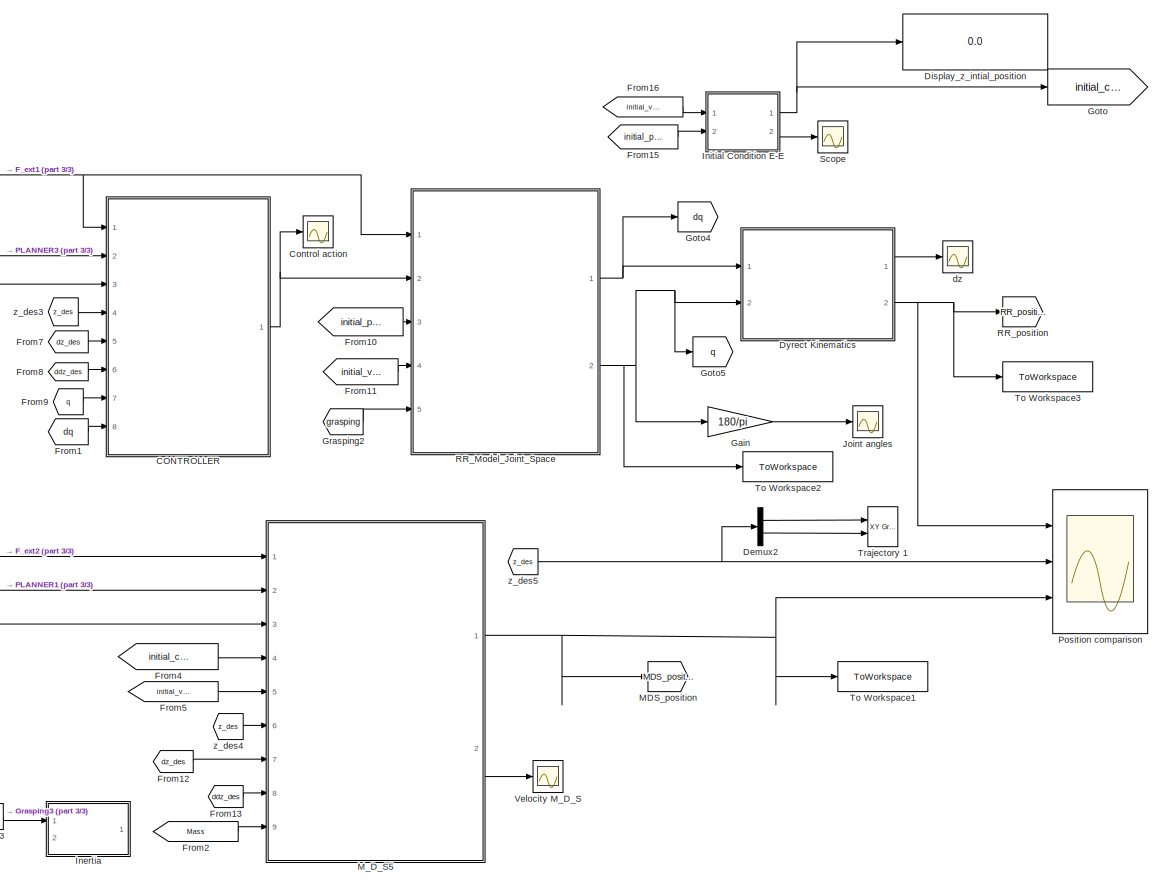
[diagram: root canvas - part 1/3, middle right region]
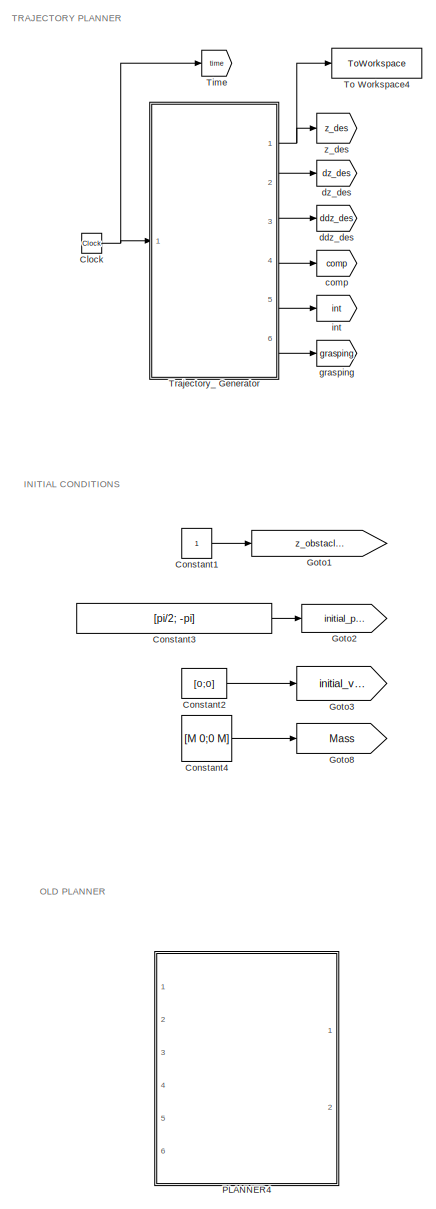
[diagram: root canvas - part 2/3, left side, full height]
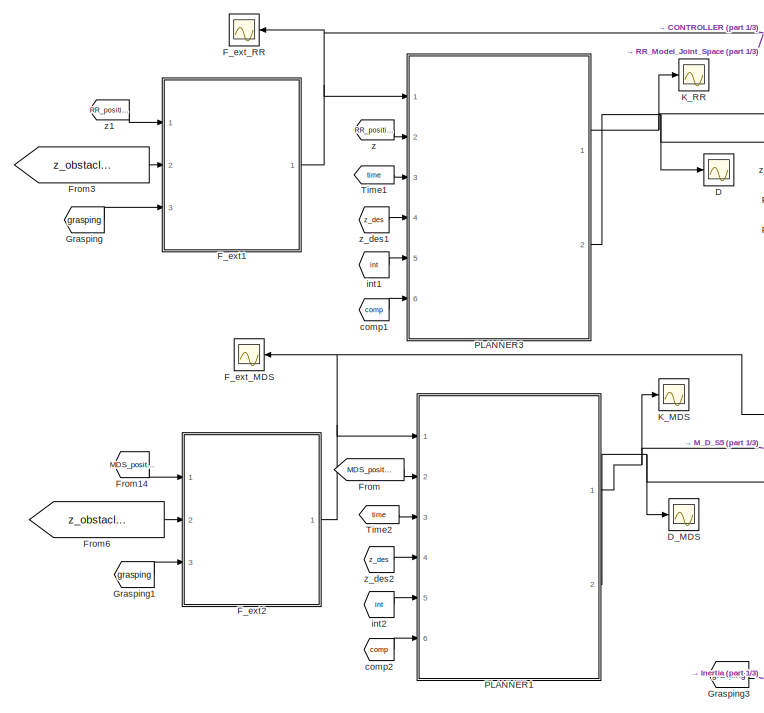
[diagram: root canvas - part 3/3, central region]
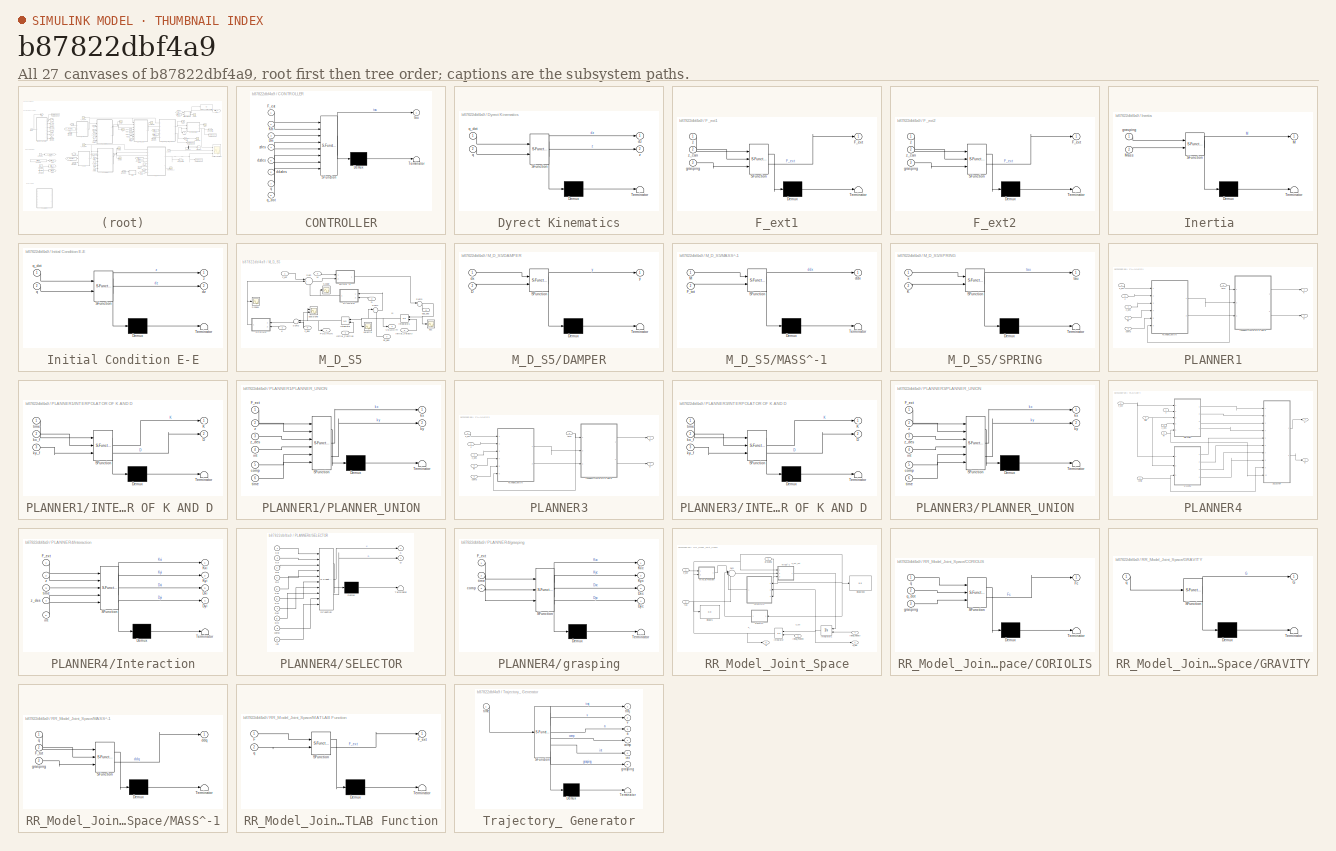
[diagram: thumbnail index - all 27 canvases of the model, root first then tree order]
MODEL slx_b87822dbf4a9
KIND model
CONFIG AbsTol = auto
CONFIG EnableMultiTasking = off
CONFIG FixedStep = 0.001
CONFIG MaxStep = auto
CONFIG MinStep = auto
CONFIG RelTol = 1e-3
CONFIG SampleTimeConstraint = Unconstrained
CONFIG SolverName = FixedStepAuto
CONFIG StartTime = 0.0
CONFIG StopTime = 5
BLOCK [SubSystem] CONTROLLER
  ErrorFcn = Stateflow.Translate.translate
  PermitHierarchicalResolution = ExplicitOnly
  Ports = [8, 1]
  RequestExecContextInheritance = off
  SFBlockType = MATLAB Function
  TreatAsAtomicUnit = on
BLOCK [Demux] CONTROLLER/ Demux 
  Outputs = 1
  Ports = [1, 1]
BLOCK [S-Function] CONTROLLER/ SFunction 
  EnableBusSupport = on
  FunctionName = sf_sfun
  Parameters = M
  PortCounts = [8 2]
  Ports = [8, 2]
  SFcnIsStateOwnerBlock = off
  SFunctionDeploymentMode = off
  Tag = Stateflow S-Function 13
BLOCK [Terminator] CONTROLLER/ Terminator 
BLOCK [Inport] CONTROLLER/Dm
  Port = 3
BLOCK [Inport] CONTROLLER/F_ext
BLOCK [Inport] CONTROLLER/Km
  Port = 2
BLOCK [Inport] CONTROLLER/ddzdes
  Port = 6
BLOCK [Inport] CONTROLLER/dzdes
  Port = 5
BLOCK [Inport] CONTROLLER/q
  Port = 7
BLOCK [Inport] CONTROLLER/q_dot
  Port = 8
BLOCK [Outport] CONTROLLER/tau
BLOCK [Inport] CONTROLLER/zdes
  Port = 4
BLOCK [Clock] Clock
BLOCK [Constant] Constant1
BLOCK [Constant] Constant2
  Value = [0;0]
BLOCK [Constant] Constant3
  Value = [pi/2; -pi]
BLOCK [Constant] Constant4
  Value = [M 0;0 M]
BLOCK [Scope] Control action
  Floating = off
  NumInputPorts = 1
  Ports = [1]
  ScopeSpecificationString = Simulink.scopes.TimeScopeBlockCfg('CurrentConfiguration', extmgr.ConfigurationSet(extmgr.Configuration('Core','General UI',true),extmgr.Configuration('Core','Source UI',true),extmgr.Configuration('Sources','WiredSimulink',true,'DataLoggingVariableName','ScopeData16'),extmgr.Configuration('Visuals','Time Domain',true,'SerializedDisplays',{struct('MinYLimReal','-353.38379','MaxYLimReal','314.35842',...<+1520ch>
BLOCK [Scope] D
  Floating = off
  NumInputPorts = 1
  Ports = [1]
  ScopeSpecificationString = Simulink.scopes.TimeScopeBlockCfg('CurrentConfiguration', extmgr.ConfigurationSet(extmgr.Configuration('Core','General UI',true),extmgr.Configuration('Core','Source UI',true),extmgr.Configuration('Sources','WiredSimulink',true,'DataLoggingVariableName','ScopeData12'),extmgr.Configuration('Visuals','Time Domain',true,'SerializedDisplays',{struct('MinYLimReal','-1.75089','MaxYLimReal','15.75803','YL...<+1451ch>
BLOCK [Scope] D_MDS
  Floating = off
  NumInputPorts = 1
  Ports = [1]
  ScopeSpecificationString = Simulink.scopes.TimeScopeBlockCfg('CurrentConfiguration', extmgr.ConfigurationSet(extmgr.Configuration('Core','General UI',true),extmgr.Configuration('Core','Source UI',true),extmgr.Configuration('Sources','WiredSimulink',true,'DataLoggingVariableName','ScopeData3'),extmgr.Configuration('Visuals','Time Domain',true,'SerializedDisplays',{struct('MinYLimReal','-7.83023','MaxYLimReal','70.47207','YLa...<+1469ch>
BLOCK [Demux] Demux2
  Commented = on
  Outputs = 2
  Ports = [1, 2]
BLOCK [Display] Display_z_intial_position
  Decimation = 1
  Ports = [1]
BLOCK [SubSystem] Dyrect Kinematics
  ErrorFcn = Stateflow.Translate.translate
  PermitHierarchicalResolution = ExplicitOnly
  Ports = [2, 2]
  RequestExecContextInheritance = off
  SFBlockType = MATLAB Function
  TreatAsAtomicUnit = on
BLOCK [Demux] Dyrect Kinematics/ Demux 
  Outputs = 1
  Ports = [1, 1]
BLOCK [S-Function] Dyrect Kinematics/ SFunction 
  EnableBusSupport = on
  FunctionName = sf_sfun
  Parameters = l1,l2
  PortCounts = [2 3]
  Ports = [2, 3]
  SFcnIsStateOwnerBlock = off
  SFunctionDeploymentMode = off
  Tag = Stateflow S-Function 6
BLOCK [Terminator] Dyrect Kinematics/ Terminator 
BLOCK [Outport] Dyrect Kinematics/dz
BLOCK [Inport] Dyrect Kinematics/q
  Port = 2
BLOCK [Inport] Dyrect Kinematics/q_dot
BLOCK [Outport] Dyrect Kinematics/z
  Port = 2
BLOCK [SubSystem] F_ext1
  ErrorFcn = Stateflow.Translate.translate
  PermitHierarchicalResolution = ExplicitOnly
  Ports = [3, 1]
  RequestExecContextInheritance = off
  SFBlockType = MATLAB Function
  TreatAsAtomicUnit = on
BLOCK [Demux] F_ext1/ Demux 
  Outputs = 1
  Ports = [1, 1]
BLOCK [S-Function] F_ext1/ SFunction 
  EnableBusSupport = on
  FunctionName = sf_sfun
  Parameters = g,mass_can
  PortCounts = [3 2]
  Ports = [3, 2]
  SFcnIsStateOwnerBlock = off
  SFunctionDeploymentMode = off
  Tag = Stateflow S-Function 11
BLOCK [Terminator] F_ext1/ Terminator 
BLOCK [Outport] F_ext1/F_ext
BLOCK [Inport] F_ext1/grasping
  Port = 3
BLOCK [Inport] F_ext1/z
BLOCK [Inport] F_ext1/z_can
  Port = 2
BLOCK [SubSystem] F_ext2
  ErrorFcn = Stateflow.Translate.translate
  PermitHierarchicalResolution = ExplicitOnly
  Ports = [3, 1]
  RequestExecContextInheritance = off
  SFBlockType = MATLAB Function
  TreatAsAtomicUnit = on
BLOCK [Demux] F_ext2/ Demux 
  Outputs = 1
  Ports = [1, 1]
BLOCK [S-Function] F_ext2/ SFunction 
  EnableBusSupport = on
  FunctionName = sf_sfun
  Parameters = g,mass_can
  PortCounts = [3 2]
  Ports = [3, 2]
  SFcnIsStateOwnerBlock = off
  SFunctionDeploymentMode = off
  Tag = Stateflow S-Function 1
BLOCK [Terminator] F_ext2/ Terminator 
BLOCK [Outport] F_ext2/F_ext
BLOCK [Inport] F_ext2/grasping
  Port = 3
BLOCK [Inport] F_ext2/z
BLOCK [Inport] F_ext2/z_can
  Port = 2
BLOCK [Scope] F_ext_MDS
  Floating = off
  NameLocation = top
  NumInputPorts = 1
  Ports = [1]
  ScopeSpecificationString = Simulink.scopes.TimeScopeBlockCfg('CurrentConfiguration', extmgr.ConfigurationSet(extmgr.Configuration('Core','General UI',true),extmgr.Configuration('Core','Source UI',true),extmgr.Configuration('Sources','WiredSimulink',true,'DataLoggingVariableName','ScopeData4'),extmgr.Configuration('Visuals','Time Domain',true,'SerializedDisplays',{struct('MinYLimReal','-11.03645','MaxYLimReal','1.22803','YLa...<+1533ch>
BLOCK [Scope] F_ext_RR
  Floating = off
  NumInputPorts = 1
  Ports = [1]
  ScopeSpecificationString = Simulink.scopes.TimeScopeBlockCfg('CurrentConfiguration', extmgr.ConfigurationSet(extmgr.Configuration('Core','General UI',true),extmgr.Configuration('Core','Source UI',true),extmgr.Configuration('Sources','WiredSimulink',true),extmgr.Configuration('Visuals','Time Domain',true,'SerializedDisplays',{struct('MinYLimReal','-10.50214','MaxYLimReal','1.1669','YLabelReal','','MinYLimMag','0.00000','MaxY...<+1493ch>
BLOCK [From] From
  GotoTag = MDS_position
BLOCK [From] From1
  GotoTag = dq
BLOCK [From] From10
  GotoTag = initial_pos
BLOCK [From] From11
  GotoTag = initial_vel
BLOCK [From] From12
  GotoTag = dz_des
  TagVisibility = global
BLOCK [From] From13
  GotoTag = ddz_des
BLOCK [From] From14
  GotoTag = MDS_position
BLOCK [From] From15
  GotoTag = initial_pos
BLOCK [From] From16
  GotoTag = initial_vel
BLOCK [From] From2
  GotoTag = Mass
BLOCK [From] From3
  GotoTag = z_obstacle_for_interaction
BLOCK [From] From4
  GotoTag = initial_condition
BLOCK [From] From5
  GotoTag = initial_vel
BLOCK [From] From6
  GotoTag = z_obstacle_for_interaction
BLOCK [From] From7
  GotoTag = dz_des
  TagVisibility = global
BLOCK [From] From8
  GotoTag = ddz_des
BLOCK [From] From9
  GotoTag = q
BLOCK [Gain] Gain
  Gain = 180/pi
BLOCK [Goto] Goto
  GotoTag = initial_condition
BLOCK [Goto] Goto1
  GotoTag = z_obstacle_for_interaction
BLOCK [Goto] Goto2
  GotoTag = initial_pos
BLOCK [Goto] Goto3
  GotoTag = initial_vel
BLOCK [Goto] Goto4
  GotoTag = dq
BLOCK [Goto] Goto5
  GotoTag = q
BLOCK [Goto] Goto8
  GotoTag = Mass
BLOCK [From] Grasping
  GotoTag = grasping
BLOCK [From] Grasping1
  GotoTag = grasping
BLOCK [From] Grasping2
  GotoTag = grasping
BLOCK [From] Grasping3
  Commented = on
  GotoTag = grasping
BLOCK [SubSystem] Inertia 
  Commented = on
  ErrorFcn = Stateflow.Translate.translate
  PermitHierarchicalResolution = ExplicitOnly
  Ports = [2, 1]
  RequestExecContextInheritance = off
  SFBlockType = MATLAB Function
  TreatAsAtomicUnit = on
BLOCK [Demux] Inertia / Demux 
  Outputs = 1
  Ports = [1, 1]
BLOCK [S-Function] Inertia / SFunction 
  EnableBusSupport = on
  FunctionName = sf_sfun
  Parameters = mass_can
  PortCounts = [2 2]
  Ports = [2, 2]
  SFcnIsStateOwnerBlock = off
  SFunctionDeploymentMode = off
  Tag = Stateflow S-Function 12
BLOCK [Terminator] Inertia / Terminator 
BLOCK [Outport] Inertia /M
BLOCK [Inport] Inertia /Mass
  Port = 2
BLOCK [Inport] Inertia /grasping
BLOCK [SubSystem] Initial Condition E-E
  ErrorFcn = Stateflow.Translate.translate
  PermitHierarchicalResolution = ExplicitOnly
  Ports = [2, 2]
  RequestExecContextInheritance = off
  SFBlockType = MATLAB Function
  TreatAsAtomicUnit = on
BLOCK [Demux] Initial Condition E-E/ Demux 
  Outputs = 1
  Ports = [1, 1]
BLOCK [S-Function] Initial Condition E-E/ SFunction 
  EnableBusSupport = on
  FunctionName = sf_sfun
  Parameters = l1,l2
  PortCounts = [2 3]
  Ports = [2, 3]
  SFcnIsStateOwnerBlock = off
  SFunctionDeploymentMode = off
  Tag = Stateflow S-Function 14
BLOCK [Terminator] Initial Condition E-E/ Terminator 
BLOCK [Outport] Initial Condition E-E/dz
  Port = 2
BLOCK [Inport] Initial Condition E-E/q
  Port = 2
BLOCK [Inport] Initial Condition E-E/q_dot
BLOCK [Outport] Initial Condition E-E/z
BLOCK [Scope] Joint angles
  Floating = off
  NumInputPorts = 1
  Ports = [1]
  ScopeSpecificationString = Simulink.scopes.TimeScopeBlockCfg('CurrentConfiguration', extmgr.ConfigurationSet(extmgr.Configuration('Core','General UI',true),extmgr.Configuration('Core','Source UI',true),extmgr.Configuration('Sources','WiredSimulink',true,'DataLoggingVariableName','ScopeData15'),extmgr.Configuration('Visuals','Time Domain',true,'SerializedDisplays',{struct('MinYLimReal','20.81645','MaxYLimReal','131.7396','YL...<+1452ch>
BLOCK [Scope] K_MDS
  Floating = off
  NumInputPorts = 1
  Ports = [1]
  ScopeSpecificationString = Simulink.scopes.TimeScopeBlockCfg('CurrentConfiguration', extmgr.ConfigurationSet(extmgr.Configuration('Core','General UI',true),extmgr.Configuration('Core','Source UI',true),extmgr.Configuration('Sources','WiredSimulink',true,'DataLoggingVariableName','ScopeData2'),extmgr.Configuration('Visuals','Time Domain',true,'SerializedDisplays',{struct('MinYLimReal','-61.3125','MaxYLimReal','551.8125','YLa...<+1570ch>
BLOCK [Scope] K_RR
  Floating = off
  NumInputPorts = 1
  Ports = [1]
  ScopeSpecificationString = Simulink.scopes.TimeScopeBlockCfg('CurrentConfiguration', extmgr.ConfigurationSet(extmgr.Configuration('Core','General UI',true),extmgr.Configuration('Core','Source UI',true),extmgr.Configuration('Sources','WiredSimulink',true,'DataLoggingVariableName','ScopeData13'),extmgr.Configuration('Visuals','Time Domain',true,'SerializedDisplays',{struct('MinYLimReal','-122.625','MaxYLimReal','1103.625','YL...<+1605ch>
BLOCK [Goto] MDS_position
  GotoTag = MDS_position
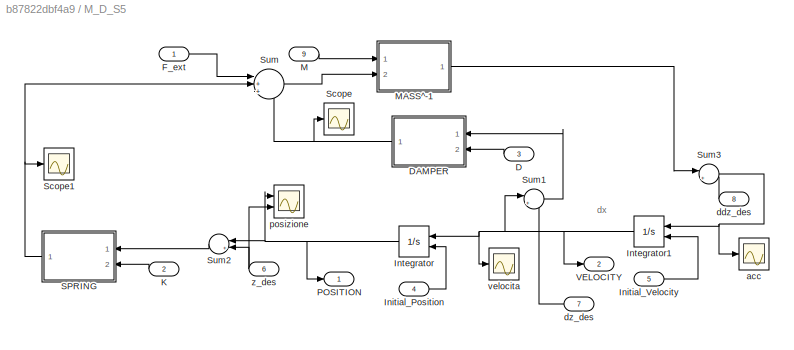
BLOCK [SubSystem] M_D_S5
  Ports = [9, 2]
  RequestExecContextInheritance = off
BLOCK [Inport] M_D_S5/D
  Port = 3
BLOCK [SubSystem] M_D_S5/DAMPER
  ErrorFcn = Stateflow.Translate.translate
  PermitHierarchicalResolution = ExplicitOnly
  Ports = [2, 1]
  RequestExecContextInheritance = off
  SFBlockType = MATLAB Function
  TreatAsAtomicUnit = on
BLOCK [Demux] M_D_S5/DAMPER/ Demux 
  Outputs = 1
  Ports = [1, 1]
BLOCK [S-Function] M_D_S5/DAMPER/ SFunction 
  EnableBusSupport = on
  FunctionName = sf_sfun
  PortCounts = [2 2]
  Ports = [2, 2]
  SFcnIsStateOwnerBlock = off
  SFunctionDeploymentMode = off
  Tag = Stateflow S-Function 21
BLOCK [Terminator] M_D_S5/DAMPER/ Terminator 
BLOCK [Inport] M_D_S5/DAMPER/D
  Port = 2
BLOCK [Inport] M_D_S5/DAMPER/dx
BLOCK [Outport] M_D_S5/DAMPER/y
BLOCK [Inport] M_D_S5/F_ext
BLOCK [Inport] M_D_S5/Initial_Position
  Port = 4
BLOCK [Inport] M_D_S5/Initial_Velocity
  Port = 5
BLOCK [Integrator] M_D_S5/Integrator
  InitialConditionSource = external
  Ports = [2, 1]
BLOCK [Integrator] M_D_S5/Integrator1
  InitialConditionSource = external
  Ports = [2, 1]
BLOCK [Inport] M_D_S5/K
  Port = 2
BLOCK [Inport] M_D_S5/M
  Port = 9
BLOCK [SubSystem] M_D_S5/MASS^-1
  ErrorFcn = Stateflow.Translate.translate
  PermitHierarchicalResolution = ExplicitOnly
  Ports = [2, 1]
  RequestExecContextInheritance = off
  SFBlockType = MATLAB Function
  TreatAsAtomicUnit = on
BLOCK [Demux] M_D_S5/MASS^-1/ Demux 
  Outputs = 1
  Ports = [1, 1]
BLOCK [S-Function] M_D_S5/MASS^-1/ SFunction 
  EnableBusSupport = on
  FunctionName = sf_sfun
  PortCounts = [2 2]
  Ports = [2, 2]
  SFcnIsStateOwnerBlock = off
  SFunctionDeploymentMode = off
  Tag = Stateflow S-Function 22
BLOCK [Terminator] M_D_S5/MASS^-1/ Terminator 
BLOCK [Inport] M_D_S5/MASS^-1/F_tot
  Port = 2
BLOCK [Inport] M_D_S5/MASS^-1/M
BLOCK [Outport] M_D_S5/MASS^-1/ddx
BLOCK [Outport] M_D_S5/POSITION
BLOCK [SubSystem] M_D_S5/SPRING
  ErrorFcn = Stateflow.Translate.translate
  PermitHierarchicalResolution = ExplicitOnly
  Ports = [2, 1]
  RequestExecContextInheritance = off
  SFBlockType = MATLAB Function
  TreatAsAtomicUnit = on
BLOCK [Demux] M_D_S5/SPRING/ Demux 
  Outputs = 1
  Ports = [1, 1]
BLOCK [S-Function] M_D_S5/SPRING/ SFunction 
  EnableBusSupport = on
  FunctionName = sf_sfun
  PortCounts = [2 2]
  Ports = [2, 2]
  SFcnIsStateOwnerBlock = off
  SFunctionDeploymentMode = off
  Tag = Stateflow S-Function 23
BLOCK [Terminator] M_D_S5/SPRING/ Terminator 
BLOCK [Inport] M_D_S5/SPRING/K
  Port = 2
BLOCK [Outport] M_D_S5/SPRING/tau
BLOCK [Inport] M_D_S5/SPRING/x
BLOCK [Scope] M_D_S5/Scope
  Floating = off
  NumInputPorts = 1
  Ports = [1]
  ScopeSpecificationString = Simulink.scopes.TimeScopeBlockCfg('CurrentConfiguration', extmgr.ConfigurationSet(extmgr.Configuration('Core','General UI',true),extmgr.Configuration('Core','Source UI',true),extmgr.Configuration('Sources','WiredSimulink',true,'DataLoggingVariableName','ScopeData15'),extmgr.Configuration('Visuals','Time Domain',true,'SerializedDisplays',{struct('MinYLimReal','-37.99931','MaxYLimReal','6.12026','YL...<+1429ch>
BLOCK [Scope] M_D_S5/Scope1
  Floating = off
  NumInputPorts = 1
  Ports = [1]
  ScopeSpecificationString = Simulink.scopes.TimeScopeBlockCfg('CurrentConfiguration', extmgr.ConfigurationSet(extmgr.Configuration('Core','General UI',true),extmgr.Configuration('Core','Source UI',true),extmgr.Configuration('Sources','WiredSimulink',true,'DataLoggingVariableName','ScopeData17'),extmgr.Configuration('Visuals','Time Domain',true,'SerializedDisplays',{struct('MinYLimReal','-42.49417','MaxYLimReal','4.72157','YL...<+1454ch>
BLOCK [Sum] M_D_S5/Sum
  Inputs = |+++
  Ports = [3, 1]
BLOCK [Sum] M_D_S5/Sum1
  Inputs = |+-
  Ports = [2, 1]
BLOCK [Sum] M_D_S5/Sum2
  Inputs = |+-
  Ports = [2, 1]
BLOCK [Sum] M_D_S5/Sum3
  Inputs = |++
  Ports = [2, 1]
BLOCK [Outport] M_D_S5/VELOCITY
  Port = 2
BLOCK [Scope] M_D_S5/acc
  Floating = off
  NumInputPorts = 1
  Ports = [1]
  ScopeSpecificationString = Simulink.scopes.TimeScopeBlockCfg('CurrentConfiguration', extmgr.ConfigurationSet(extmgr.Configuration('Core','General UI',true),extmgr.Configuration('Core','Source UI',true),extmgr.Configuration('Sources','WiredSimulink',true,'DataLoggingVariableName','ScopeData6'),extmgr.Configuration('Visuals','Time Domain',true,'SerializedDisplays',{struct('MinYLimReal','-10.14929','MaxYLimReal','22.48721','YL...<+1470ch>
BLOCK [Inport] M_D_S5/ddz_des
  Port = 8
BLOCK [Inport] M_D_S5/dz_des
  Port = 7
BLOCK [Scope] M_D_S5/posizione
  Floating = off
  NumInputPorts = 2
  Ports = [2]
  ScopeSpecificationString = Simulink.scopes.TimeScopeBlockCfg('CurrentConfiguration', extmgr.ConfigurationSet(extmgr.Configuration('Core','General UI',true),extmgr.Configuration('Core','Source UI',true),extmgr.Configuration('Sources','WiredSimulink',true,'DataLoggingVariableName','ScopeData8'),extmgr.Configuration('Visuals','Time Domain',true,'SerializedDisplays',{struct('MinYLimReal','-0.15023','MaxYLimReal','1.35207','YLab...<+1431ch>
BLOCK [Scope] M_D_S5/velocita
  Floating = off
  NumInputPorts = 1
  Ports = [1]
  ScopeSpecificationString = Simulink.scopes.TimeScopeBlockCfg('CurrentConfiguration', extmgr.ConfigurationSet(extmgr.Configuration('Core','General UI',true),extmgr.Configuration('Core','Source UI',true),extmgr.Configuration('Sources','WiredSimulink',true,'DataLoggingVariableName','ScopeData7'),extmgr.Configuration('Visuals','Time Domain',true,'SerializedDisplays',{struct('MinYLimReal','-0.64463','MaxYLimReal','2.63053','YLab...<+1417ch>
BLOCK [Inport] M_D_S5/z_des
  Port = 6
BLOCK [SubSystem] PLANNER1
  Ports = [6, 2]
  RequestExecContextInheritance = off
BLOCK [Outport] PLANNER1/D
  Port = 2
BLOCK [Inport] PLANNER1/F_ext
BLOCK [SubSystem] PLANNER1/INTERPOLATOR OF K AND D 
  ErrorFcn = Stateflow.Translate.translate
  PermitHierarchicalResolution = ExplicitOnly
  Ports = [3, 2]
  RequestExecContextInheritance = off
  SFBlockType = MATLAB Function
  TreatAsAtomicUnit = on
BLOCK [Demux] PLANNER1/INTERPOLATOR OF K AND D / Demux 
  Outputs = 1
  Ports = [1, 1]
BLOCK [S-Function] PLANNER1/INTERPOLATOR OF K AND D / SFunction 
  EnableBusSupport = on
  FunctionName = sf_sfun
  Parameters = F_max,M,a0,berta,csi,e_max,mass
  PortCounts = [3 3]
  Ports = [3, 3]
  SFcnIsStateOwnerBlock = off
  SFunctionDeploymentMode = off
  Tag = Stateflow S-Function 2
BLOCK [Terminator] PLANNER1/INTERPOLATOR OF K AND D / Terminator 
BLOCK [Outport] PLANNER1/INTERPOLATOR OF K AND D /D
  Port = 2
BLOCK [Outport] PLANNER1/INTERPOLATOR OF K AND D /K
BLOCK [Inport] PLANNER1/INTERPOLATOR OF K AND D /kx_f
  Port = 2
BLOCK [Inport] PLANNER1/INTERPOLATOR OF K AND D /ky_f
  Port = 3
BLOCK [Inport] PLANNER1/INTERPOLATOR OF K AND D /time
BLOCK [Outport] PLANNER1/K
BLOCK [SubSystem] PLANNER1/PLANNER_UNION
  ErrorFcn = Stateflow.Translate.translate
  PermitHierarchicalResolution = ExplicitOnly
  Ports = [6, 2]
  RequestExecContextInheritance = off
  SFBlockType = MATLAB Function
  TreatAsAtomicUnit = on
BLOCK [Demux] PLANNER1/PLANNER_UNION/ Demux 
  Outputs = 1
  Ports = [1, 1]
BLOCK [S-Function] PLANNER1/PLANNER_UNION/ SFunction 
  EnableBusSupport = on
  FunctionName = sf_sfun
  Parameters = F_int_max,F_max,e_max
  PortCounts = [6 3]
  Ports = [6, 3]
  SFcnIsStateOwnerBlock = off
  SFunctionDeploymentMode = off
  Tag = Stateflow S-Function 7
BLOCK [Terminator] PLANNER1/PLANNER_UNION/ Terminator 
BLOCK [Inport] PLANNER1/PLANNER_UNION/F_ext
BLOCK [Inport] PLANNER1/PLANNER_UNION/comp
  Port = 5
BLOCK [Inport] PLANNER1/PLANNER_UNION/int
  Port = 4
BLOCK [Outport] PLANNER1/PLANNER_UNION/kx
BLOCK [Outport] PLANNER1/PLANNER_UNION/ky
  Port = 2
BLOCK [Inport] PLANNER1/PLANNER_UNION/time
  Port = 6
BLOCK [Inport] PLANNER1/PLANNER_UNION/z
  Port = 2
BLOCK [Inport] PLANNER1/PLANNER_UNION/z_des
  Port = 3
BLOCK [Inport] PLANNER1/comp
  Port = 6
BLOCK [Inport] PLANNER1/int
  Port = 5
BLOCK [Inport] PLANNER1/time
  Port = 3
BLOCK [Inport] PLANNER1/z
  Port = 2
BLOCK [Inport] PLANNER1/z_des
  Port = 4
BLOCK [SubSystem] PLANNER3
  Ports = [6, 2]
  RequestExecContextInheritance = off
BLOCK [Outport] PLANNER3/D
  Port = 2
BLOCK [Inport] PLANNER3/F_ext
BLOCK [SubSystem] PLANNER3/INTERPOLATOR OF K AND D 
  ErrorFcn = Stateflow.Translate.translate
  PermitHierarchicalResolution = ExplicitOnly
  Ports = [3, 2]
  RequestExecContextInheritance = off
  SFBlockType = MATLAB Function
  TreatAsAtomicUnit = on
BLOCK [Demux] PLANNER3/INTERPOLATOR OF K AND D / Demux 
  Outputs = 1
  Ports = [1, 1]
BLOCK [S-Function] PLANNER3/INTERPOLATOR OF K AND D / SFunction 
  EnableBusSupport = on
  FunctionName = sf_sfun
  Parameters = F_max,M,a0,berta,csi,e_max,mass
  PortCounts = [3 3]
  Ports = [3, 3]
  SFcnIsStateOwnerBlock = off
  SFunctionDeploymentMode = off
  Tag = Stateflow S-Function 17
BLOCK [Terminator] PLANNER3/INTERPOLATOR OF K AND D / Terminator 
BLOCK [Outport] PLANNER3/INTERPOLATOR OF K AND D /D
  Port = 2
BLOCK [Outport] PLANNER3/INTERPOLATOR OF K AND D /K
BLOCK [Inport] PLANNER3/INTERPOLATOR OF K AND D /kx_f
  Port = 2
BLOCK [Inport] PLANNER3/INTERPOLATOR OF K AND D /ky_f
  Port = 3
BLOCK [Inport] PLANNER3/INTERPOLATOR OF K AND D /time
BLOCK [Outport] PLANNER3/K
BLOCK [SubSystem] PLANNER3/PLANNER_UNION
  ErrorFcn = Stateflow.Translate.translate
  PermitHierarchicalResolution = ExplicitOnly
  Ports = [6, 2]
  RequestExecContextInheritance = off
  SFBlockType = MATLAB Function
  TreatAsAtomicUnit = on
BLOCK [Demux] PLANNER3/PLANNER_UNION/ Demux 
  Outputs = 1
  Ports = [1, 1]
BLOCK [S-Function] PLANNER3/PLANNER_UNION/ SFunction 
  EnableBusSupport = on
  FunctionName = sf_sfun
  Parameters = F_int_max,F_max,e_max
  PortCounts = [6 3]
  Ports = [6, 3]
  SFcnIsStateOwnerBlock = off
  SFunctionDeploymentMode = off
  Tag = Stateflow S-Function 18
BLOCK [Terminator] PLANNER3/PLANNER_UNION/ Terminator 
BLOCK [Inport] PLANNER3/PLANNER_UNION/F_ext
BLOCK [Inport] PLANNER3/PLANNER_UNION/comp
  Port = 5
BLOCK [Inport] PLANNER3/PLANNER_UNION/int
  Port = 4
BLOCK [Outport] PLANNER3/PLANNER_UNION/kx
BLOCK [Outport] PLANNER3/PLANNER_UNION/ky
  Port = 2
BLOCK [Inport] PLANNER3/PLANNER_UNION/time
  Port = 6
BLOCK [Inport] PLANNER3/PLANNER_UNION/z
  Port = 2
BLOCK [Inport] PLANNER3/PLANNER_UNION/z_des
  Port = 3
BLOCK [Inport] PLANNER3/comp
  Port = 6
BLOCK [Inport] PLANNER3/int
  Port = 5
BLOCK [Inport] PLANNER3/time
  Port = 3
BLOCK [Inport] PLANNER3/z
  Port = 2
BLOCK [Inport] PLANNER3/z_des
  Port = 4
BLOCK [SubSystem] PLANNER4
  Commented = on
  Ports = [6, 2]
  RequestExecContextInheritance = off
BLOCK [Outport] PLANNER4/D
  Port = 2
BLOCK [Inport] PLANNER4/F_ext
  Port = 2
BLOCK [SubSystem] PLANNER4/Interaction
  ErrorFcn = Stateflow.Translate.translate
  PermitHierarchicalResolution = ExplicitOnly
  Ports = [5, 4]
  RequestExecContextInheritance = off
  SFBlockType = MATLAB Function
  TreatAsAtomicUnit = on
BLOCK [Demux] PLANNER4/Interaction/ Demux 
  Outputs = 1
  Ports = [1, 1]
BLOCK [S-Function] PLANNER4/Interaction/ SFunction 
  EnableBusSupport = on
  FunctionName = sf_sfun
  Parameters = F_int_max,F_max,e_max,mass
  PortCounts = [5 5]
  Ports = [5, 5]
  SFcnIsStateOwnerBlock = off
  SFunctionDeploymentMode = off
  Tag = Stateflow S-Function 20
BLOCK [Terminator] PLANNER4/Interaction/ Terminator 
BLOCK [Outport] PLANNER4/Interaction/Dxi
  Port = 3
BLOCK [Outport] PLANNER4/Interaction/Dyi
  Port = 4
BLOCK [Inport] PLANNER4/Interaction/F_ext
BLOCK [Outport] PLANNER4/Interaction/Kxi
BLOCK [Outport] PLANNER4/Interaction/Kyi
  Port = 2
BLOCK [Inport] PLANNER4/Interaction/int
  Port = 5
BLOCK [Inport] PLANNER4/Interaction/time
  Port = 3
BLOCK [Inport] PLANNER4/Interaction/z
  Port = 2
BLOCK [Inport] PLANNER4/Interaction/z_des
  Port = 4
BLOCK [Outport] PLANNER4/K
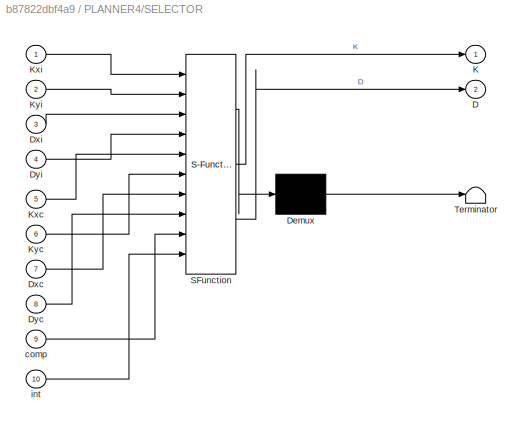
BLOCK [SubSystem] PLANNER4/SELECTOR
  ErrorFcn = Stateflow.Translate.translate
  PermitHierarchicalResolution = ExplicitOnly
  Ports = [10, 2]
  RequestExecContextInheritance = off
  SFBlockType = MATLAB Function
  TreatAsAtomicUnit = on
BLOCK [Demux] PLANNER4/SELECTOR/ Demux 
  Outputs = 1
  Ports = [1, 1]
BLOCK [S-Function] PLANNER4/SELECTOR/ SFunction 
  EnableBusSupport = on
  FunctionName = sf_sfun
  Parameters = F_max,M,e_max
  PortCounts = [10 3]
  Ports = [10, 3]
  SFcnIsStateOwnerBlock = off
  SFunctionDeploymentMode = off
  Tag = Stateflow S-Function 24
BLOCK [Terminator] PLANNER4/SELECTOR/ Terminator 
BLOCK [Outport] PLANNER4/SELECTOR/D
  Port = 2
BLOCK [Inport] PLANNER4/SELECTOR/Dxc
  Port = 7
BLOCK [Inport] PLANNER4/SELECTOR/Dxi
  Port = 3
BLOCK [Inport] PLANNER4/SELECTOR/Dyc
  Port = 8
BLOCK [Inport] PLANNER4/SELECTOR/Dyi
  Port = 4
BLOCK [Outport] PLANNER4/SELECTOR/K
BLOCK [Inport] PLANNER4/SELECTOR/Kxc
  Port = 5
BLOCK [Inport] PLANNER4/SELECTOR/Kxi
BLOCK [Inport] PLANNER4/SELECTOR/Kyc
  Port = 6
BLOCK [Inport] PLANNER4/SELECTOR/Kyi
  Port = 2
BLOCK [Inport] PLANNER4/SELECTOR/comp
  Port = 9
BLOCK [Inport] PLANNER4/SELECTOR/int
  Port = 10
BLOCK [Inport] PLANNER4/comp
  Port = 4
BLOCK [SubSystem] PLANNER4/grasping
  ErrorFcn = Stateflow.Translate.translate
  PermitHierarchicalResolution = ExplicitOnly
  Ports = [3, 4]
  RequestExecContextInheritance = off
  SFBlockType = MATLAB Function
  TreatAsAtomicUnit = on
BLOCK [Demux] PLANNER4/grasping/ Demux 
  Outputs = 1
  Ports = [1, 1]
BLOCK [S-Function] PLANNER4/grasping/ SFunction 
  EnableBusSupport = on
  FunctionName = sf_sfun
  Parameters = F_max,F_weight,a0,berta,csi,e_max,mass
  PortCounts = [3 5]
  Ports = [3, 5]
  SFcnIsStateOwnerBlock = off
  SFunctionDeploymentMode = off
  Tag = Stateflow S-Function 25
BLOCK [Terminator] PLANNER4/grasping/ Terminator 
BLOCK [Outport] PLANNER4/grasping/Dxc
  Port = 3
BLOCK [Outport] PLANNER4/grasping/Dyc
  Port = 4
BLOCK [Inport] PLANNER4/grasping/F_ext
BLOCK [Outport] PLANNER4/grasping/Kxc
BLOCK [Outport] PLANNER4/grasping/Kyc
  Port = 2
BLOCK [Inport] PLANNER4/grasping/comp
  Port = 3
BLOCK [Inport] PLANNER4/grasping/time
  Port = 2
BLOCK [Inport] PLANNER4/int
  Port = 5
BLOCK [Inport] PLANNER4/time
  Port = 6
BLOCK [Inport] PLANNER4/z
BLOCK [Inport] PLANNER4/z_des
  Port = 3
BLOCK [Scope] Position comparison
  Floating = off
  NumInputPorts = 3
  Ports = [3]
  ScopeSpecificationString = Simulink.scopes.TimeScopeBlockCfg('CurrentConfiguration', extmgr.ConfigurationSet(extmgr.Configuration('Core','General UI',true),extmgr.Configuration('Core','Source UI',true),extmgr.Configuration('Sources','WiredSimulink',true,'DataLoggingVariableName','ScopeData9'),extmgr.Configuration('Visuals','Time Domain',true,'SerializedDisplays',{struct('MinYLimReal','-0.14375','MaxYLimReal','1.29375','YLab...<+1684ch>
BLOCK [SubSystem] RR_Model_Joint_Space
  Ports = [5, 2]
  RequestExecContextInheritance = off
BLOCK [SubSystem] RR_Model_Joint_Space/CORIOLIS
  ErrorFcn = Stateflow.Translate.translate
  PermitHierarchicalResolution = ExplicitOnly
  Ports = [3, 1]
  RequestExecContextInheritance = off
  SFBlockType = MATLAB Function
  TreatAsAtomicUnit = on
BLOCK [Demux] RR_Model_Joint_Space/CORIOLIS/ Demux 
  Outputs = 1
  Ports = [1, 1]
BLOCK [S-Function] RR_Model_Joint_Space/CORIOLIS/ SFunction 
  EnableBusSupport = on
  FunctionName = sf_sfun
  Parameters = a,ac
  PortCounts = [3 2]
  Ports = [3, 2]
  SFcnIsStateOwnerBlock = off
  SFunctionDeploymentMode = off
  Tag = Stateflow S-Function 19
BLOCK [Terminator] RR_Model_Joint_Space/CORIOLIS/ Terminator 
BLOCK [Outport] RR_Model_Joint_Space/CORIOLIS/Fc
BLOCK [Inport] RR_Model_Joint_Space/CORIOLIS/grasping
  Port = 3
BLOCK [Inport] RR_Model_Joint_Space/CORIOLIS/q
BLOCK [Inport] RR_Model_Joint_Space/CORIOLIS/q_dot
  Port = 2
BLOCK [Display] RR_Model_Joint_Space/Display5
  Decimation = 1
  Ports = [1]
BLOCK [Display] RR_Model_Joint_Space/Displayqqq
  Decimation = 1
  Ports = [1]
BLOCK [Inport] RR_Model_Joint_Space/F_ext
BLOCK [SubSystem] RR_Model_Joint_Space/GRAVITY
  ErrorFcn = Stateflow.Translate.translate
  PermitHierarchicalResolution = ExplicitOnly
  Ports = [1, 1]
  RequestExecContextInheritance = off
  SFBlockType = MATLAB Function
  TreatAsAtomicUnit = on
BLOCK [Demux] RR_Model_Joint_Space/GRAVITY/ Demux 
  Outputs = 1
  Ports = [1, 1]
BLOCK [S-Function] RR_Model_Joint_Space/GRAVITY/ SFunction 
  EnableBusSupport = on
  FunctionName = sf_sfun
  Parameters = g,l1,l2,m1,m2
  PortCounts = [1 2]
  Ports = [1, 2]
  SFcnIsStateOwnerBlock = off
  SFunctionDeploymentMode = off
  Tag = Stateflow S-Function 3
BLOCK [Terminator] RR_Model_Joint_Space/GRAVITY/ Terminator 
BLOCK [Outport] RR_Model_Joint_Space/GRAVITY/G
BLOCK [Inport] RR_Model_Joint_Space/GRAVITY/q
BLOCK [Inport] RR_Model_Joint_Space/Initial_Position
  NameLocation = top
  Port = 3
BLOCK [Inport] RR_Model_Joint_Space/Initial_Velocity
  Port = 4
BLOCK [Integrator] RR_Model_Joint_Space/Integrator
  InitialConditionSource = external
  Ports = [2, 1]
BLOCK [Integrator] RR_Model_Joint_Space/Integrator1
  InitialCondition = [0;0]
  InitialConditionSource = external
  Ports = [2, 1]
BLOCK [SubSystem] RR_Model_Joint_Space/MASS^-1
  ErrorFcn = Stateflow.Translate.translate
  PermitHierarchicalResolution = ExplicitOnly
  Ports = [3, 1]
  RequestExecContextInheritance = off
  SFBlockType = MATLAB Function
  TreatAsAtomicUnit = on
BLOCK [Demux] RR_Model_Joint_Space/MASS^-1/ Demux 
  Outputs = 1
  Ports = [1, 1]
BLOCK [S-Function] RR_Model_Joint_Space/MASS^-1/ SFunction 
  EnableBusSupport = on
  FunctionName = sf_sfun
  Parameters = I1,I2,Ic,l1,l2,m1,m2,mass_can
  PortCounts = [3 2]
  Ports = [3, 2]
  SFcnIsStateOwnerBlock = off
  SFunctionDeploymentMode = off
  Tag = Stateflow S-Function 4
BLOCK [Terminator] RR_Model_Joint_Space/MASS^-1/ Terminator 
BLOCK [Inport] RR_Model_Joint_Space/MASS^-1/F_tot
  Port = 2
BLOCK [Outport] RR_Model_Joint_Space/MASS^-1/ddq
BLOCK [Inport] RR_Model_Joint_Space/MASS^-1/grasping
  Port = 3
BLOCK [Inport] RR_Model_Joint_Space/MASS^-1/q
BLOCK [SubSystem] RR_Model_Joint_Space/MATLAB Function
  ErrorFcn = Stateflow.Translate.translate
  PermitHierarchicalResolution = ExplicitOnly
  Ports = [2, 1]
  RequestExecContextInheritance = off
  SFBlockType = MATLAB Function
  TreatAsAtomicUnit = on
BLOCK [Demux] RR_Model_Joint_Space/MATLAB Function/ Demux 
  Outputs = 1
  Ports = [1, 1]
BLOCK [S-Function] RR_Model_Joint_Space/MATLAB Function/ SFunction 
  EnableBusSupport = on
  FunctionName = sf_sfun
  Parameters = l1,l2
  PortCounts = [2 2]
  Ports = [2, 2]
  SFcnIsStateOwnerBlock = off
  SFunctionDeploymentMode = off
  Tag = Stateflow S-Function 5
BLOCK [Terminator] RR_Model_Joint_Space/MATLAB Function/ Terminator 
BLOCK [Inport] RR_Model_Joint_Space/MATLAB Function/F
BLOCK [Outport] RR_Model_Joint_Space/MATLAB Function/F_ext
BLOCK [Inport] RR_Model_Joint_Space/MATLAB Function/q
  Port = 2
BLOCK [Sum] RR_Model_Joint_Space/Sum
  Inputs = |++-+
  Ports = [4, 1]
BLOCK [Inport] RR_Model_Joint_Space/grasping
  Port = 5
BLOCK [Outport] RR_Model_Joint_Space/q
  Port = 2
BLOCK [Outport] RR_Model_Joint_Space/q_dot
BLOCK [Inport] RR_Model_Joint_Space/tau
  Port = 2
BLOCK [Goto] RR_position
  GotoTag = RR_position
BLOCK [Scope] Scope
  Floating = off
  NumInputPorts = 1
  Ports = [1]
  ScopeSpecificationString = Simulink.scopes.TimeScopeBlockCfg('CurrentConfiguration', extmgr.ConfigurationSet(extmgr.Configuration('Core','General UI',true),extmgr.Configuration('Core','Source UI',true),extmgr.Configuration('Sources','WiredSimulink',true,'DataLoggingVariableName','ScopeData11'),extmgr.Configuration('Visuals','Time Domain',true),extmgr.Configuration('Tools','Plot Navigation',true),extmgr.Configuration('Tools'...<+41ch>
BLOCK [Goto] Time
  GotoTag = time
BLOCK [From] Time1
  GotoTag = time
BLOCK [From] Time2
  GotoTag = time
BLOCK [ToWorkspace] To Workspace1
  FixptAsFi = on
  MaxDataPoints = inf
  Ports = [1]
  SampleTime = -1
  SaveFormat = Timeseries
  VariableName = z1
BLOCK [ToWorkspace] To Workspace2
  FixptAsFi = on
  MaxDataPoints = inf
  Ports = [1]
  SampleTime = -1
  Save2DSignal = 2-D array (concatenate along first dimension)
  SaveFormat = Timeseries
  VariableName = q
BLOCK [ToWorkspace] To Workspace3
  FixptAsFi = on
  MaxDataPoints = inf
  Ports = [1]
  SampleTime = -1
  SaveFormat = Timeseries
  VariableName = z
BLOCK [ToWorkspace] To Workspace4
  FixptAsFi = on
  MaxDataPoints = inf
  Ports = [1]
  SampleTime = -1
  Save2DSignal = 2-D array (concatenate along first dimension)
  SaveFormat = Timeseries
  VariableName = z_des
BLOCK [Reference] Trajectory 1  REF=simulink/Sinks/XY Graph
  Commented = on
  Ports = [2]
  SourceBlock = simulink/Sinks/XY Graph
  SourceProductBaseCode = SL
  SourceType = XY scope.
BLOCK [SubSystem] Trajectory_ Generator
  ErrorFcn = Stateflow.Translate.translate
  PermitHierarchicalResolution = ExplicitOnly
  Ports = [1, 6]
  RequestExecContextInheritance = off
  SFBlockType = MATLAB Function
  TreatAsAtomicUnit = on
BLOCK [Demux] Trajectory_ Generator/ Demux 
  Outputs = 1
  Ports = [1, 1]
BLOCK [S-Function] Trajectory_ Generator/ SFunction 
  EnableBusSupport = on
  FunctionName = sf_sfun
  PortCounts = [1 7]
  Ports = [1, 7]
  SFcnIsStateOwnerBlock = off
  SFunctionDeploymentMode = off
  Tag = Stateflow S-Function 10
BLOCK [Terminator] Trajectory_ Generator/ Terminator 
BLOCK [Outport] Trajectory_ Generator/a
  Port = 3
BLOCK [Outport] Trajectory_ Generator/comp
  Port = 4
BLOCK [Outport] Trajectory_ Generator/grasping
  Port = 6
BLOCK [Outport] Trajectory_ Generator/int
  Port = 5
BLOCK [Inport] Trajectory_ Generator/time
BLOCK [Outport] Trajectory_ Generator/traj
BLOCK [Outport] Trajectory_ Generator/v
  Port = 2
BLOCK [Scope] Velocity M_D_S
  Floating = off
  NumInputPorts = 1
  Ports = [1]
  ScopeSpecificationString = Simulink.scopes.TimeScopeBlockCfg('CurrentConfiguration', extmgr.ConfigurationSet(extmgr.Configuration('Core','General UI',true),extmgr.Configuration('Core','Source UI',true),extmgr.Configuration('Sources','WiredSimulink',true,'DataLoggingVariableName','ScopeData1'),extmgr.Configuration('Visuals','Time Domain',true),extmgr.Configuration('Tools','Plot Navigation',true),extmgr.Configuration('Tools',...<+40ch>
BLOCK [Goto] comp
  GotoTag = comp
BLOCK [From] comp1
  GotoTag = comp
BLOCK [From] comp2
  GotoTag = comp
BLOCK [Goto] ddz_des
  GotoTag = ddz_des
BLOCK [Scope] dz
  Floating = off
  NumInputPorts = 1
  Ports = [1]
  ScopeSpecificationString = Simulink.scopes.TimeScopeBlockCfg('CurrentConfiguration', extmgr.ConfigurationSet(extmgr.Configuration('Core','General UI',true),extmgr.Configuration('Core','Source UI',true),extmgr.Configuration('Sources','WiredSimulink',true,'DataLoggingVariableName','ScopeData14'),extmgr.Configuration('Visuals','Time Domain',true,'SerializedDisplays',{struct('MinYLimReal','-0.06033','MaxYLimReal','0.028','YLabe...<+1433ch>
BLOCK [Goto] dz_des
  GotoTag = dz_des
  TagVisibility = global
BLOCK [Goto] grasping
  GotoTag = grasping
BLOCK [Goto] int
  GotoTag = int
BLOCK [From] int1
  GotoTag = int
BLOCK [From] int2
  GotoTag = int
BLOCK [From] z
  GotoTag = RR_position
BLOCK [From] z1
  GotoTag = RR_position
BLOCK [Goto] z_des
  GotoTag = z_des
  IconDisplay = Signal name
  TagVisibility = global
BLOCK [From] z_des1
  GotoTag = z_des
  TagVisibility = global
BLOCK [From] z_des2
  GotoTag = z_des
  TagVisibility = global
BLOCK [From] z_des3
  GotoTag = z_des
  TagVisibility = global
BLOCK [From] z_des4
  GotoTag = z_des
  TagVisibility = global
BLOCK [From] z_des5
  GotoTag = z_des
  TagVisibility = global
ANNOTATION (root): INITIAL CONDITIONS
ANNOTATION (root): OLD PLANNER
ANNOTATION (root): TRAJECTORY PLANNER
ANNOTATION M_D_S5: dx
ANNOTATION RR_Model_Joint_Space: q_
ANNOTATION RR_Model_Joint_Space: q_dot
ANNOTATION RR_Model_Joint_Space: q_dot_dot
NET CONTROLLER:1 -> Control action:1, RR_Model_Joint_Space:2
NET Clock:1 -> Time:1, Trajectory_ Generator:1
LINE Constant1:1 -> Goto1:1
LINE Constant2:1 -> Goto3:1
LINE Constant3:1 -> Goto2:1
LINE Constant4:1 -> Goto8:1
LINE Demux2:1 -> Trajectory 1:1
LINE Demux2:2 -> Trajectory 1:2
LINE Dyrect Kinematics:1 -> dz:1
NET Dyrect Kinematics:2 -> Position comparison:1, RR_position:1, To Workspace3:1
NET F_ext1:1 -> CONTROLLER:1, F_ext_RR:1, PLANNER3:1, RR_Model_Joint_Space:1
NET F_ext2:1 -> F_ext_MDS:1, M_D_S5:1, PLANNER1:1
LINE From10:1 -> RR_Model_Joint_Space:3
LINE From11:1 -> RR_Model_Joint_Space:4
LINE From12:1 -> M_D_S5:7
LINE From13:1 -> M_D_S5:8
LINE From14:1 -> F_ext2:1
LINE From15:1 -> Initial Condition E-E:2
LINE From16:1 -> Initial Condition E-E:1
LINE From1:1 -> CONTROLLER:8
LINE From2:1 -> M_D_S5:9
LINE From3:1 -> F_ext1:2
LINE From4:1 -> M_D_S5:4
LINE From5:1 -> M_D_S5:5
LINE From6:1 -> F_ext2:2
LINE From7:1 -> CONTROLLER:5
LINE From8:1 -> CONTROLLER:6
LINE From9:1 -> CONTROLLER:7
LINE From:1 -> PLANNER1:2
LINE Gain:1 -> Joint angles:1
LINE Grasping1:1 -> F_ext2:3
LINE Grasping2:1 -> RR_Model_Joint_Space:5
LINE Grasping3:1 -> Inertia :1
LINE Grasping:1 -> F_ext1:3
NET Initial Condition E-E:1 -> Display_z_intial_position:1, Goto:1
LINE Initial Condition E-E:2 -> Scope:1
LINE M_D_S5/D:1 -> M_D_S5/DAMPER:2
NET M_D_S5/DAMPER:1 -> M_D_S5/Scope:1, M_D_S5/Sum:3
LINE M_D_S5/F_ext:1 -> M_D_S5/Sum:1
LINE M_D_S5/Initial_Position:1 -> M_D_S5/Integrator:2
LINE M_D_S5/Initial_Velocity:1 -> M_D_S5/Integrator1:2
NET M_D_S5/Integrator1:1 -> M_D_S5/Integrator:1, M_D_S5/Sum1:1, M_D_S5/VELOCITY:1, M_D_S5/velocita:1
NET M_D_S5/Integrator:1 -> M_D_S5/POSITION:1, M_D_S5/Sum2:1, M_D_S5/posizione:1
LINE M_D_S5/K:1 -> M_D_S5/SPRING:2
LINE M_D_S5/M:1 -> M_D_S5/MASS^-1:1
LINE M_D_S5/MASS^-1:1 -> M_D_S5/Sum3:1
NET M_D_S5/SPRING:1 -> M_D_S5/Scope1:1, M_D_S5/Sum:2
LINE M_D_S5/Sum1:1 -> M_D_S5/DAMPER:1
LINE M_D_S5/Sum2:1 -> M_D_S5/SPRING:1
NET M_D_S5/Sum3:1 -> M_D_S5/Integrator1:1, M_D_S5/acc:1
LINE M_D_S5/Sum:1 -> M_D_S5/MASS^-1:2
LINE M_D_S5/ddz_des:1 -> M_D_S5/Sum3:2
LINE M_D_S5/dz_des:1 -> M_D_S5/Sum1:2
NET M_D_S5/z_des:1 -> M_D_S5/Sum2:2, M_D_S5/posizione:2
NET M_D_S5:1 -> MDS_position:1, Position comparison:3, To Workspace1:1
LINE M_D_S5:2 -> Velocity M_D_S:1
LINE PLANNER1/F_ext:1 -> PLANNER1/PLANNER_UNION:1
LINE PLANNER1/INTERPOLATOR OF K AND D :1 -> PLANNER1/K:1
LINE PLANNER1/INTERPOLATOR OF K AND D :2 -> PLANNER1/D:1
LINE PLANNER1/PLANNER_UNION:1 -> PLANNER1/INTERPOLATOR OF K AND D :2
LINE PLANNER1/PLANNER_UNION:2 -> PLANNER1/INTERPOLATOR OF K AND D :3
LINE PLANNER1/comp:1 -> PLANNER1/PLANNER_UNION:5
LINE PLANNER1/int:1 -> PLANNER1/PLANNER_UNION:4
NET PLANNER1/time:1 -> PLANNER1/INTERPOLATOR OF K AND D :1, PLANNER1/PLANNER_UNION:6
LINE PLANNER1/z:1 -> PLANNER1/PLANNER_UNION:2
LINE PLANNER1/z_des:1 -> PLANNER1/PLANNER_UNION:3
NET PLANNER1:1 -> K_MDS:1, M_D_S5:2
NET PLANNER1:2 -> D_MDS:1, M_D_S5:3
LINE PLANNER3/F_ext:1 -> PLANNER3/PLANNER_UNION:1
LINE PLANNER3/INTERPOLATOR OF K AND D :1 -> PLANNER3/K:1
LINE PLANNER3/INTERPOLATOR OF K AND D :2 -> PLANNER3/D:1
LINE PLANNER3/PLANNER_UNION:1 -> PLANNER3/INTERPOLATOR OF K AND D :2
LINE PLANNER3/PLANNER_UNION:2 -> PLANNER3/INTERPOLATOR OF K AND D :3
LINE PLANNER3/comp:1 -> PLANNER3/PLANNER_UNION:5
LINE PLANNER3/int:1 -> PLANNER3/PLANNER_UNION:4
NET PLANNER3/time:1 -> PLANNER3/INTERPOLATOR OF K AND D :1, PLANNER3/PLANNER_UNION:6
LINE PLANNER3/z:1 -> PLANNER3/PLANNER_UNION:2
LINE PLANNER3/z_des:1 -> PLANNER3/PLANNER_UNION:3
NET PLANNER3:1 -> CONTROLLER:2, K_RR:1
NET PLANNER3:2 -> CONTROLLER:3, D:1
NET PLANNER4/F_ext:1 -> PLANNER4/Interaction:1, PLANNER4/grasping:1
LINE PLANNER4/Interaction:1 -> PLANNER4/SELECTOR:1
LINE PLANNER4/Interaction:2 -> PLANNER4/SELECTOR:2
LINE PLANNER4/Interaction:3 -> PLANNER4/SELECTOR:3
LINE PLANNER4/Interaction:4 -> PLANNER4/SELECTOR:4
LINE PLANNER4/SELECTOR:1 -> PLANNER4/K:1
LINE PLANNER4/SELECTOR:2 -> PLANNER4/D:1
NET PLANNER4/comp:1 -> PLANNER4/SELECTOR:9, PLANNER4/grasping:3
LINE PLANNER4/grasping:1 -> PLANNER4/SELECTOR:5
LINE PLANNER4/grasping:2 -> PLANNER4/SELECTOR:6
LINE PLANNER4/grasping:3 -> PLANNER4/SELECTOR:7
LINE PLANNER4/grasping:4 -> PLANNER4/SELECTOR:8
NET PLANNER4/int:1 -> PLANNER4/Interaction:5, PLANNER4/SELECTOR:10
NET PLANNER4/time:1 -> PLANNER4/Interaction:3, PLANNER4/grasping:2
LINE PLANNER4/z:1 -> PLANNER4/Interaction:2
LINE PLANNER4/z_des:1 -> PLANNER4/Interaction:4
LINE RR_Model_Joint_Space/CORIOLIS:1 -> RR_Model_Joint_Space/Sum:3
LINE RR_Model_Joint_Space/F_ext:1 -> RR_Model_Joint_Space/MATLAB Function:1
LINE RR_Model_Joint_Space/GRAVITY:1 -> RR_Model_Joint_Space/Sum:2
LINE RR_Model_Joint_Space/Initial_Position:1 -> RR_Model_Joint_Space/Integrator:2
LINE RR_Model_Joint_Space/Initial_Velocity:1 -> RR_Model_Joint_Space/Integrator1:2
NET RR_Model_Joint_Space/Integrator1:1 -> RR_Model_Joint_Space/CORIOLIS:2, RR_Model_Joint_Space/Integrator:1, RR_Model_Joint_Space/q_dot:1
NET RR_Model_Joint_Space/Integrator:1 -> RR_Model_Joint_Space/CORIOLIS:1, RR_Model_Joint_Space/Displayqqq:1, RR_Model_Joint_Space/GRAVITY:1, RR_Model_Joint_Space/MASS^-1:1, RR_Model_Joint_Space/MATLAB Function:2, RR_Model_Joint_Space/q:1
LINE RR_Model_Joint_Space/MASS^-1:1 -> RR_Model_Joint_Space/Integrator1:1
LINE RR_Model_Joint_Space/MATLAB Function:1 -> RR_Model_Joint_Space/Sum:1
LINE RR_Model_Joint_Space/Sum:1 -> RR_Model_Joint_Space/MASS^-1:2
NET RR_Model_Joint_Space/grasping:1 -> RR_Model_Joint_Space/CORIOLIS:3, RR_Model_Joint_Space/MASS^-1:3
NET RR_Model_Joint_Space/tau:1 -> RR_Model_Joint_Space/Display5:1, RR_Model_Joint_Space/Sum:4
NET RR_Model_Joint_Space:1 -> Dyrect Kinematics:1, Goto4:1
NET RR_Model_Joint_Space:2 -> Dyrect Kinematics:2, Gain:1, Goto5:1, To Workspace2:1
LINE Time1:1 -> PLANNER3:3
LINE Time2:1 -> PLANNER1:3
NET Trajectory_ Generator:1 -> To Workspace4:1, z_des:1
LINE Trajectory_ Generator:2 -> dz_des:1
LINE Trajectory_ Generator:3 -> ddz_des:1
LINE Trajectory_ Generator:4 -> comp:1
LINE Trajectory_ Generator:5 -> int:1
LINE Trajectory_ Generator:6 -> grasping:1
LINE comp1:1 -> PLANNER3:6
LINE comp2:1 -> PLANNER1:6
LINE int1:1 -> PLANNER3:5
LINE int2:1 -> PLANNER1:5
LINE z1:1 -> F_ext1:1
LINE z:1 -> PLANNER3:2
LINE z_des1:1 -> PLANNER3:4
LINE z_des2:1 -> PLANNER1:4
LINE z_des3:1 -> CONTROLLER:4
LINE z_des4:1 -> M_D_S5:6
NET z_des5:1 -> Demux2:1, Position comparison:2
note: NET lines group one-source signal fan-out (src -> all destinations, sorted); 1:1 wires keep LINE
CHART Dyrect Kinematics states=1 transitions=1
  STATE_LABEL 'eML_blk_kernel()'
  STATE_LABEL 'SCRIPT:\nfunction [dz,z] = fcn(q_dot,q,l1, l2)\n\nz = zeros(2,1);\nz(1) = l1*cos(q(1)) + l2*cos(q(1)+q(2));\nz(2) = l1*sin(q(1)) + l2*sin(q(1)+q(2));\n\nJa = zeros(2,2);\nJa = [-l1*sin(q(1)) - l2*sin(q(1)+q(2)), -l2*sin(q(1)+q(2)); ...\n    l1*cos(q(1)) + l2*cos(q(1)+q(2)), l2*cos(q(1)+q(2))];\n\ndz = zeros(2,1);\ndz = Ja*q_dot;\n\nend'
CHART PLANNER1/PLANNER_UNION states=1 transitions=1
  STATE_LABEL 'eML_blk_kernel()'
  STATE_LABEL 'SCRIPT:\nfunction [kx, ky] = fcn(F_ext, z, z_des, int, comp, e_max, F_max, F_int_max, time)\n%% Description MDS_interaction\n\n\n%% Outputs\n% K            stiffness \n% D            damping \n\n%% Inputs\n% time          current simulation time\n% F_ext         measured external force\n% mass          mass scalar value \n% F_int_max     desired interaction force\n% z_des         desired trajectory\n% z         ...<+3608ch>'
CHART Trajectory_ Generator states=1 transitions=1
  STATE_LABEL 'eML_blk_kernel()'
  STATE_LABEL 'SCRIPT:\nfunction [traj,v, a, comp, int, grasping] = fcn(time)\n\ncomp = [0;0];\nint = [0;0];\nt_prec = 0;\ngrasping = 0;\n\nif time < 0.1\n    a = [5;0];\n    traj = 0.5*a*(time)^2;   % initial vel = 0;\n    v = a*time;\n    int(1) = 1;\nelseif time < 2.3\n    v = [0.5;0];\n    x0 = [0.025;0];\n    traj = x0 + v*(time-0.1); \n    a = [0;0];\n    int(1) = 1;\nelseif time < 2.4\n    a = [-5;0];\n    x0 = [1.125;0];\n   ...<+805ch>'
CHART F_ext1 states=1 transitions=1
  STATE_LABEL 'eML_blk_kernel()'
  STATE_LABEL 'SCRIPT:\nfunction F_ext = fcn(z, z_can, grasping, mass_can, g)\n% hypothesis: table reaction force with elastic behaviour\nF_ext = zeros(2,1);\nk_can = 500;         \nk_table = 10000;\n% if contact is happened with can\nif grasping == 0\n    if z(1) > z_can\n        F_ext(1) = k_can*(z_can - z(1));    % force to the left\n    end\nelse \n    F_ext(1) = 0;\n    F_ext(2) = -mass_can*g;\n    if z(2) < 0\n         F...<+257ch>'
CHART Inertia  states=1 transitions=1
  STATE_LABEL 'eML_blk_kernel()'
  STATE_LABEL 'SCRIPT:\nfunction M = fcn(grasping, mass_can, Mass)\n\nif grasping == 1\n    M = diag([Mass(1,1)+mass_can Mass(2,2)+mass_can]);\nelse\n    M = Mass;\nend\n\nend'
CHART CONTROLLER states=1 transitions=1
  STATE_LABEL 'eML_blk_kernel()'
  STATE_LABEL "SCRIPT:\nfunction tau = fcn(F_ext,Km, Dm,zdes, dzdes, ddzdes, q, q_dot, M)\n%% PROBLEMA MATRICE DELLE MASSE NON DIAGONALE\ncoder.extrinsic('Jacobianoa','Jacobianoa_dot','Mass','Coriolis','Gravity','cin_dir')\ndz = zeros(2,1);\nz = zeros(2,1);\nB = zeros(2,2);\nS = zeros(2,2);\nG = zeros(2,1);\nJa = zeros(2,2);\nJa_dot = zeros(2,2);\nBm = [M 0; 0 M];\nJa = Jacobianoa(q);\nJa_dot = Jacobianoa_dot(q,q_dot);\n\ndz =...<+690ch>"
CHART Initial Condition E-E states=1 transitions=1
  STATE_LABEL 'eML_blk_kernel()'
  STATE_LABEL 'SCRIPT:\nfunction [z,dz] = fcn(q_dot,q,l1, l2)\n\nz = zeros(2,1);\nz(1) = l1*cos(q(1)) + l2*cos(q(1)+q(2));\nz(2) = l1*sin(q(1)) + l2*sin(q(1)+q(2));\n\nJa = zeros(2,2);\nJa = [-l1*sin(q(1)) - l2*sin(q(1)+q(2)), -l2*sin(q(1)+q(2)); ...\n    l1*cos(q(1)) + l2*cos(q(1)+q(2)), l2*cos(q(1)+q(2))];\n\ndz = zeros(2,1);\ndz = Ja*q_dot;\n\nend'
CHART PLANNER3/INTERPOLATOR OF K AND D  states=1 transitions=1
  STATE_LABEL 'eML_blk_kernel()'
  STATE_LABEL 'SCRIPT:\nfunction [K,D] = fcn(time, kx_f, ky_f, e_max, F_max,M, berta, a0, mass, csi)\n\npersistent kx ky time_prec\n\nif isempty(time_prec)\n    time_prec = 0;\nend\n\nif isempty(kx)\n   kx = F_max(1)/e_max; \nend\nif isempty(ky)\n   ky = F_max(2)/e_max;\nend\n\n% everytime k is increasing in accordance with stability condition\nif kx_f <= kx\n    kx = kx_f;\nelse \n    kx_i = kx;\n    k_dotx = berta*(4*a0*sqrt(kx_i/...<+561ch>'
CHART PLANNER3/PLANNER_UNION states=1 transitions=1
  STATE_LABEL 'eML_blk_kernel()'
  STATE_LABEL 'SCRIPT:\nfunction [kx, ky] = fcn(F_ext, z, z_des, int, comp, e_max, F_max, F_int_max, time)\n%% Description MDS_interaction\n\n\n%% Outputs\n% K            stiffness \n% D            damping \n\n%% Inputs\n% time          current simulation time\n% F_ext         measured external force\n% mass          mass scalar value \n% F_int_max     desired interaction force\n% z_des         desired trajectory\n% z         ...<+3608ch>'
CHART RR_Model_Joint_Space/CORIOLIS states=1 transitions=1
  STATE_LABEL 'eML_blk_kernel()'
  STATE_LABEL 'SCRIPT:\nfunction Fc = fcn(q,q_dot,a, ac, grasping)\n\nC = zeros(2,2);\nC = [-a*sin(q(2))*q_dot(2), -a*sin(q(2))*q_dot(1)-a*sin(q(2)*q_dot(2)); ...\n    a*sin(q(2))*q_dot(1), 0];\n% if grasping == 1\n%     Cc = [-ac*sin(q(2))*q_dot(2), -ac*sin(q(2))*q_dot(1)-ac*sin(q(2)*q_dot(2)); ...\n%           ac*sin(q(2))*q_dot(1), 0];\n%       C =  C + Cc;\n% end\n\nFc = C*q_dot;\n\nend\n'
CHART PLANNER4/Interaction states=1 transitions=1
  STATE_LABEL 'eML_blk_kernel()'
  STATE_LABEL 'SCRIPT:\nfunction [Kxi,Kyi,Dxi,Dyi] = fcn(F_max, e_max,F_ext, z, time, z_des, F_int_max, mass, int)\n\n%% Description MDS_interaction\n% decrease k after contact is sensed to limit the interaction force\n\n%% Outputs\n% K            stiffness \n% D            damping \n\n%% Inputs\n% time          current simulation time\n% F_ext         measured external force\n% mass          mass scalar value \n% F_int_max  ...<+1775ch>'
CHART M_D_S5/DAMPER states=1 transitions=1
  STATE_LABEL 'eML_blk_kernel()'
  STATE_LABEL 'SCRIPT:\nfunction y = fcn(dx, D)\ny = - D*dx;\nend\n'
CHART M_D_S5/MASS^-1 states=1 transitions=1
  STATE_LABEL 'eML_blk_kernel()'
  STATE_LABEL 'SCRIPT:\nfunction ddx = fcn(M,F_tot)\nddx = (M^-1)*F_tot;\nend\n'
CHART M_D_S5/SPRING states=1 transitions=1
  STATE_LABEL 'eML_blk_kernel()'
  STATE_LABEL 'SCRIPT:\nfunction tau = fcn(x, K)\ntau= -K*x;\nend\n\n\n'
CHART PLANNER4/SELECTOR states=1 transitions=1
  STATE_LABEL 'eML_blk_kernel()'
  STATE_LABEL 'SCRIPT:\nfunction [K,D] = fcn(Kxi,Kyi,Dxi,Dyi,Kxc,Kyc,Dxc,Dyc,comp,int, M, F_max, e_max)\n\nK1 = F_max(1)/e_max; \nK2 = F_max(2)/e_max; \nD1 = sqrt(4*(F_max(1)/e_max)*M); \nD2 = sqrt(4*(F_max(2)/e_max)*M);\n\nif comp(1) == 1\n    K1 = Kxc;\n    D1 = Dxc;\nend\n\nif comp(2) == 1\n    K2 = Kyc;\n    D2 = Dyc;\nend\n\nif int(1) == 1\n    K1 = Kxi;\n    D1 = Dxi;\nend\n\nif int(2) == 1\n    K2 = Kyi;\n    D2 = Dyi;\nend\n\nK = d...<+37ch>'
CHART PLANNER4/grasping states=1 transitions=1
  STATE_LABEL 'eML_blk_kernel()'
  STATE_LABEL 'SCRIPT:\nfunction [Kxc,Kyc,Dxc,Dyc] = fcn(e_max, F_ext, mass, F_weight, time, a0, csi, berta, F_max, comp)\n\n%% need to add reset of k after comp is zero. \n\n% with an estimated weight, k and d increase \n%% Outputs\n% Km            stiffness matrix\n% Dm            damping matrix \n%% Inputs\n% time          current simulation time\n% F_ext         measured external force\n\n% variables initialization \npers...<+1871ch>'
CHART F_ext2 states=1 transitions=1
  STATE_LABEL 'eML_blk_kernel()'
  STATE_LABEL 'SCRIPT:\nfunction F_ext = fcn(z, z_can, grasping, mass_can, g)\n% hypothesis: table reaction force with elastic behaviour\nF_ext = zeros(2,1);\nk_can = 500;         \nk_table = 10000;\n% if contact is happened with can\nif grasping == 0\n    if z(1) > z_can\n        F_ext(1) = k_can*(z_can - z(1));    % force to the left\n    end\nelse \n    F_ext(1) = 0;\n    F_ext(2) = -mass_can*g;\n    if z(2) < 0\n        F_...<+237ch>'
CHART PLANNER1/INTERPOLATOR OF K AND D  states=1 transitions=1
  STATE_LABEL 'eML_blk_kernel()'
  STATE_LABEL 'SCRIPT:\nfunction [K,D] = fcn(time, kx_f, ky_f, e_max, F_max,M, berta, a0, mass, csi)\n\npersistent kx ky time_prec\n\nif isempty(time_prec)\n    time_prec = 0;\nend\n\nif isempty(kx)\n   kx = F_max(1)/e_max; \nend\nif isempty(ky)\n   ky = F_max(2)/e_max;\nend\n\n% everytime k is increasing in accordance with stability condition\nif kx_f <= kx\n    kx = kx_f;\nelse \n    kx_i = kx;\n    k_dotx = berta*(4*a0*sqrt(kx_i/...<+561ch>'
CHART RR_Model_Joint_Space/GRAVITY states=1 transitions=1
  STATE_LABEL 'eML_blk_kernel()'
  STATE_LABEL 'SCRIPT:\nfunction G = fcn(q,g, l1, l2, m1, m2)\n\n\nG = [-(l1/2)*cos(q(1))*m1*g - m2*g*(l1*cos(q(1))+(l2/2)*cos(q(1)+q(2))); ...\n    -m2*g*(l2/2)*cos(q(1)+q(2))];\n\nend\n'
CHART RR_Model_Joint_Space/MASS^-1 states=1 transitions=1
  STATE_LABEL 'eML_blk_kernel()'
  STATE_LABEL 'SCRIPT:\nfunction ddq = fcn(q,F_tot,I1, I2, l1, l2, m1, m2, grasping, Ic, mass_can)\n\nmc = mass_can;\n\nB = [((l1^2)/4)*m1 + I1 + m2*(l1^2) + m2*((l2^2)/4) + m2*l1*l2*cos(q(2)) + I2, m2*(((l1*l2)/2)*cos(q(2)) + (l2^2)/4) + I2; ...\n    m2*(((l1*l2)/2)*cos(q(2)) + (l2^2)/4) + I2, m2*(l2^2)/4 + I2];\n\n% if grasping == 1\n%     Bc = [mc*((l1^2) + (l2^2) +2*l1*l2*cos(q(2))) + Ic, mc*((l2^2) + l1*l2*cos(q(2))...<+154ch>'
CHART RR_Model_Joint_Space/MATLAB Function states=1 transitions=1
  STATE_LABEL 'eML_blk_kernel()'
  STATE_LABEL "SCRIPT:\nfunction F_ext = fcn(F,q,l1, l2)\n\n\nJa = [-l1*sin(q(1)) - l2*sin(q(1)+q(2)), -l2*sin(q(1)+q(2)); ...\n    l1*cos(q(1)) + l2*cos(q(1)+q(2)), l2*cos(q(1)+q(2))];\n\nF_ext = Ja'*F;\n\nend"
CHART  states=0 transitions=0
CHART  states=0 transitions=0
CHART  states=0 transitions=0
CHART  states=0 transitions=0
CHART  states=0 transitions=0
CHART  states=0 transitions=0
CHART  states=0 transitions=0
CHART  states=0 transitions=0
CHART  states=0 transitions=0
CHART  states=0 transitions=0
CHART  states=0 transitions=0
CHART  states=0 transitions=0
CHART  states=0 transitions=0
CHART  states=0 transitions=0
CHART  states=0 transitions=0
CHART  states=0 transitions=0
CHART  states=0 transitions=0
CHART  states=0 transitions=0
CHART  states=0 transitions=0
CHART  states=0 transitions=0
CHART  states=0 transitions=0
